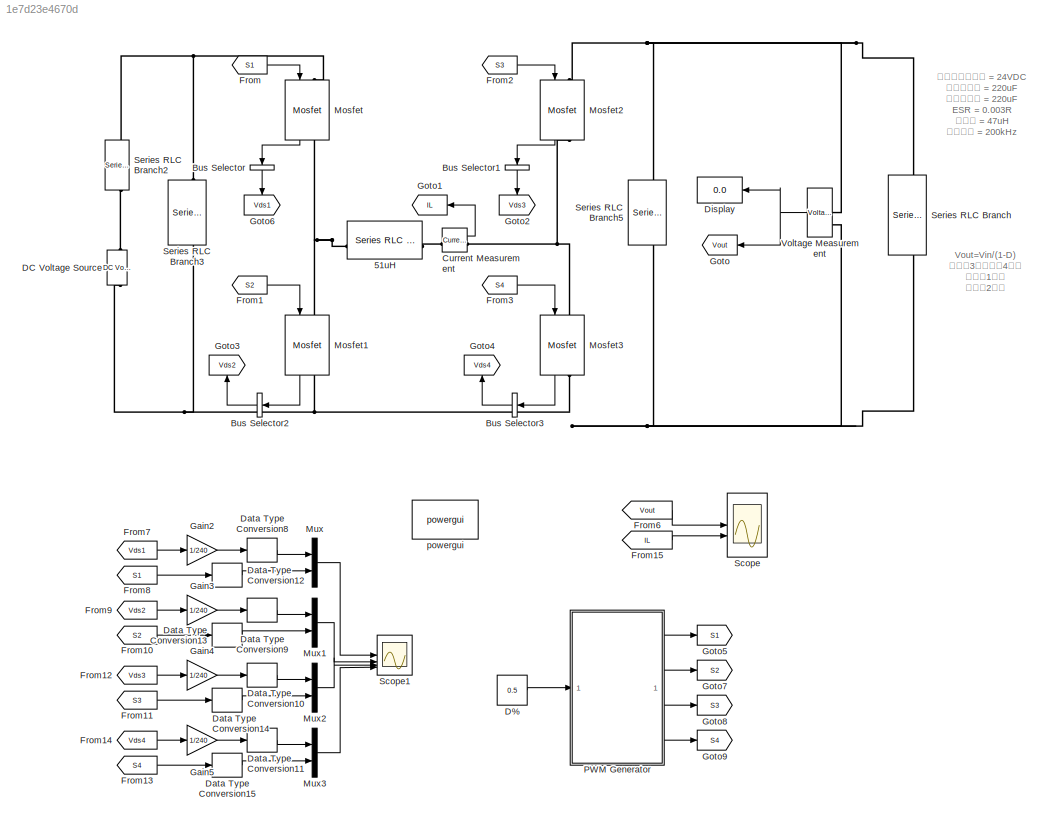
MODEL slx_1e7d23e4670d
KIND model
CONFIG AbsTol = auto
CONFIG EnableMultiTasking = off
CONFIG FixedStep = auto
CONFIG MaxStep = auto
CONFIG MinStep = auto
CONFIG RelTol = 1e-3
CONFIG SampleTimeConstraint = Unconstrained
CONFIG SolverName = VariableStepAuto
CONFIG StartTime = 0.0
CONFIG StopTime = 0.03
BLOCK [Reference] 51uH  REF=spsSeriesRLCBranchLib/Series RLC Branch
  LibrarySourceBlock = sps_lib/Passives/Series RLC Branch
  SourceBlock = spsSeriesRLCBranchLib/Series RLC Branch
  SourceType = Series RLC Branch
BLOCK [BusSelector] Bus Selector
  NameLocation = left
  OutputAsBus = on
  OutputSignals = MOSFET voltage
BLOCK [BusSelector] Bus Selector1
  NameLocation = left
  OutputAsBus = on
  OutputSignals = MOSFET voltage
BLOCK [BusSelector] Bus Selector2
  NameLocation = top
  OutputAsBus = on
  OutputSignals = MOSFET voltage
BLOCK [BusSelector] Bus Selector3
  NameLocation = top
  OutputAsBus = on
  OutputSignals = MOSFET voltage
BLOCK [Reference] Current Measurement  REF=spsCurrentMeasurementLib/Current Measurement
  LibrarySourceBlock = sps_lib/Sensors and Measurements/Current Measurement
  SourceBlock = spsCurrentMeasurementLib/Current Measurement
  SourceType = Current Measurement
  UserDataPersistent = on
BLOCK [Constant] D%
  Value = 0.5
BLOCK [Reference] DC Voltage Source  REF=spsDCVoltageSourceLib/DC Voltage Source
  LibrarySourceBlock = sps_lib/Sources/DC Voltage Source
  SourceBlock = spsDCVoltageSourceLib/DC Voltage Source
  SourceType = DC Voltage Source
BLOCK [DataTypeConversion] Data Type Conversion10
  RndMeth = Floor
  SaturateOnIntegerOverflow = off
BLOCK [DataTypeConversion] Data Type Conversion11
  RndMeth = Floor
  SaturateOnIntegerOverflow = off
BLOCK [DataTypeConversion] Data Type Conversion12
  RndMeth = Floor
  SaturateOnIntegerOverflow = off
BLOCK [DataTypeConversion] Data Type Conversion13
  RndMeth = Floor
  SaturateOnIntegerOverflow = off
BLOCK [DataTypeConversion] Data Type Conversion14
  RndMeth = Floor
  SaturateOnIntegerOverflow = off
BLOCK [DataTypeConversion] Data Type Conversion15
  RndMeth = Floor
  SaturateOnIntegerOverflow = off
BLOCK [DataTypeConversion] Data Type Conversion8
  RndMeth = Floor
  SaturateOnIntegerOverflow = off
BLOCK [DataTypeConversion] Data Type Conversion9
  RndMeth = Floor
  SaturateOnIntegerOverflow = off
BLOCK [Display] Display
  Decimation = 1
BLOCK [From] From
  GotoTag = S1
BLOCK [From] From1
  GotoTag = S2
BLOCK [From] From10
  GotoTag = S2
BLOCK [From] From11
  GotoTag = S3
BLOCK [From] From12
  GotoTag = Vds3
BLOCK [From] From13
  GotoTag = S4
BLOCK [From] From14
  GotoTag = Vds4
BLOCK [From] From15
  GotoTag = IL
BLOCK [From] From2
  GotoTag = S3
BLOCK [From] From3
  GotoTag = S4
BLOCK [From] From6
  GotoTag = Vout
BLOCK [From] From7
  GotoTag = Vds1
BLOCK [From] From8
  GotoTag = S1
BLOCK [From] From9
  GotoTag = Vds2
BLOCK [Gain] Gain2
  Gain = 1/240
BLOCK [Gain] Gain3
  Gain = 1/240
BLOCK [Gain] Gain4
  Gain = 1/240
BLOCK [Gain] Gain5
  Gain = 1/240
BLOCK [Goto] Goto
  GotoTag = Vout
BLOCK [Goto] Goto1
  GotoTag = IL
BLOCK [Goto] Goto2
  GotoTag = Vds3
  NameLocation = left
BLOCK [Goto] Goto3
  GotoTag = Vds2
  NameLocation = right
BLOCK [Goto] Goto4
  GotoTag = Vds4
  NameLocation = right
BLOCK [Goto] Goto5
  GotoTag = S1
BLOCK [Goto] Goto6
  GotoTag = Vds1
  NameLocation = left
BLOCK [Goto] Goto7
  GotoTag = S2
BLOCK [Goto] Goto8
  GotoTag = S3
BLOCK [Goto] Goto9
  GotoTag = S4
BLOCK [Reference] Mosfet  REF=spsMosfetLib/Mosfet
  LibrarySourceBlock = sps_lib/Power Electronics/Mosfet
  NameLocation = left
  SourceBlock = spsMosfetLib/Mosfet
  SourceType = Mosfet
BLOCK [Reference] Mosfet1  REF=spsMosfetLib/Mosfet
  LibrarySourceBlock = sps_lib/Power Electronics/Mosfet
  NameLocation = left
  SourceBlock = spsMosfetLib/Mosfet
  SourceType = Mosfet
BLOCK [Reference] Mosfet2  REF=spsMosfetLib/Mosfet
  LibrarySourceBlock = sps_lib/Power Electronics/Mosfet
  NameLocation = left
  SourceBlock = spsMosfetLib/Mosfet
  SourceType = Mosfet
BLOCK [Reference] Mosfet3  REF=spsMosfetLib/Mosfet
  LibrarySourceBlock = sps_lib/Power Electronics/Mosfet
  NameLocation = left
  SourceBlock = spsMosfetLib/Mosfet
  SourceType = Mosfet
BLOCK [Mux] Mux
  DisplayOption = bar
  Inputs = 2
BLOCK [Mux] Mux1
  DisplayOption = bar
  Inputs = 2
BLOCK [Mux] Mux2
  DisplayOption = bar
  Inputs = 2
BLOCK [Mux] Mux3
  DisplayOption = bar
  Inputs = 2
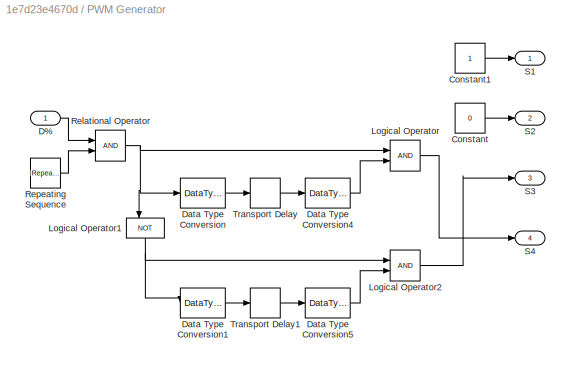
BLOCK [SubSystem] PWM Generator
BLOCK [Constant] PWM Generator/Constant
  Value = 0
BLOCK [Constant] PWM Generator/Constant1
BLOCK [Inport] PWM Generator/D%
BLOCK [DataTypeConversion] PWM Generator/Data Type Conversion
  RndMeth = Floor
  SaturateOnIntegerOverflow = off
BLOCK [DataTypeConversion] PWM Generator/Data Type Conversion1
  RndMeth = Floor
  SaturateOnIntegerOverflow = off
BLOCK [DataTypeConversion] PWM Generator/Data Type Conversion4
  RndMeth = Floor
  SaturateOnIntegerOverflow = off
BLOCK [DataTypeConversion] PWM Generator/Data Type Conversion5
  RndMeth = Floor
  SaturateOnIntegerOverflow = off
BLOCK [Logic] PWM Generator/Logical Operator
  AllPortsSameDT = off
  OutDataTypeStr = boolean
BLOCK [Logic] PWM Generator/Logical Operator1
  AllPortsSameDT = off
  NameLocation = left
  Operator = NOT
  OutDataTypeStr = boolean
BLOCK [Logic] PWM Generator/Logical Operator2
  AllPortsSameDT = off
  OutDataTypeStr = boolean
BLOCK [RelationalOperator] PWM Generator/Relational Operator
  InputSameDT = off
  OutDataTypeStr = boolean
BLOCK [Reference] PWM Generator/Repeating Sequence  REF=simulink/Sources/Repeating
Sequence
  SourceBlock = simulink/Sources/Repeating\nSequence
  SourceType = Repeating table
BLOCK [Outport] PWM Generator/S1
BLOCK [Outport] PWM Generator/S2
  Port = 2
BLOCK [Outport] PWM Generator/S3
  Port = 3
BLOCK [Outport] PWM Generator/S4
  Port = 4
BLOCK [TransportDelay] PWM Generator/Transport Delay
  DelayTime = 200e-9
BLOCK [TransportDelay] PWM Generator/Transport Delay1
  DelayTime = 200e-9
BLOCK [Scope] Scope
  Floating = off
  NumInputPorts = 2
  ScopeSpecificationString = Simulink.scopes.TimeScopeBlockCfg('CurrentConfiguration', extmgr.ConfigurationSet(extmgr.Configuration('Core','General UI',true,'FigureColor',[1 1 1]),extmgr.Configuration('Core','Source UI',true),extmgr.Configuration('Sources','WiredSimulink',true,'DataLoggingVariableName','ScopeData1'),extmgr.Configuration('Visuals','Time Domain',true,'SerializedDisplays',{struct('MinYLimReal','44.28661','MaxYLi...<+4218ch>
BLOCK [Scope] Scope1
  Floating = off
  NumInputPorts = 4
  ScopeSpecificationString = Simulink.scopes.TimeScopeBlockCfg('CurrentConfiguration', extmgr.ConfigurationSet(extmgr.Configuration('Core','General UI',true,'FigureColor',[1 1 1]),extmgr.Configuration('Core','Source UI',true),extmgr.Configuration('Sources','WiredSimulink',true),extmgr.Configuration('Visuals','Time Domain',true,'SerializedDisplays',{struct('MinYLimReal','-0.70594','MaxYLimReal','1.73874','YLabelReal','','MinYL...<+4796ch>
BLOCK [Reference] Series RLC Branch  REF=spsSeriesRLCBranchLib/Series RLC Branch
  LibrarySourceBlock = sps_lib/Passives/Series RLC Branch
  NameLocation = left
  SourceBlock = spsSeriesRLCBranchLib/Series RLC Branch
  SourceType = Series RLC Branch
BLOCK [Reference] Series RLC Branch2  REF=spsSeriesRLCBranchLib/Series RLC Branch
  LibrarySourceBlock = sps_lib/Passives/Series RLC Branch
  NameLocation = left
  SourceBlock = spsSeriesRLCBranchLib/Series RLC Branch
  SourceType = Series RLC Branch
BLOCK [Reference] Series RLC Branch3  REF=spsSeriesRLCBranchLib/Series RLC Branch
  LibrarySourceBlock = sps_lib/Passives/Series RLC Branch
  NameLocation = left
  SourceBlock = spsSeriesRLCBranchLib/Series RLC Branch
  SourceType = Series RLC Branch
BLOCK [Reference] Series RLC Branch5  REF=spsSeriesRLCBranchLib/Series RLC Branch
  LibrarySourceBlock = sps_lib/Passives/Series RLC Branch
  NameLocation = left
  SourceBlock = spsSeriesRLCBranchLib/Series RLC Branch
  SourceType = Series RLC Branch
BLOCK [Reference] Voltage Measurement  REF=spsVoltageMeasurementLib/Voltage Measurement
  LibrarySourceBlock = sps_lib/Sensors and Measurements/Voltage Measurement
  SourceBlock = spsVoltageMeasurementLib/Voltage Measurement
  SourceType = Voltage Measurement
  UserDataPersistent = on
BLOCK [Reference] powergui  REF=sps_lib/powergui
  LibrarySourceBlock = sps_lib/powergui
  Priority = 1
  SourceBlock = sps_lib/powergui
  SourceType = PSB option menu block
ANNOTATION (root): 输入电压标称值 = 24VDC 输入电容值 = 220uF 输出电容值 = 220uF ESR = 0.003R 电感值 = 47uH 开关频率 = 200kHz
ANNOTATION (root): Vout=Vin/(1-D) 开关管3与开关管4互补 开关管1常闭 开关管2常开
LINE Bus Selector1:1 -> Goto2:1
LINE Bus Selector2:1 -> Goto3:1
LINE Bus Selector3:1 -> Goto4:1
LINE Bus Selector:1 -> Goto6:1
LINE Current Measurement:1 -> Goto1:1
LINE D%:1 -> PWM Generator:1
LINE Data Type Conversion10:1 -> Mux2:1
LINE Data Type Conversion11:1 -> Mux3:1
LINE Data Type Conversion12:1 -> Mux:2
LINE Data Type Conversion13:1 -> Mux1:2
LINE Data Type Conversion14:1 -> Mux2:2
LINE Data Type Conversion15:1 -> Mux3:2
LINE Data Type Conversion8:1 -> Mux:1
LINE Data Type Conversion9:1 -> Mux1:1
LINE From10:1 -> Data Type Conversion13:1
LINE From11:1 -> Data Type Conversion14:1
LINE From12:1 -> Gain4:1
LINE From13:1 -> Data Type Conversion15:1
LINE From14:1 -> Gain5:1
LINE From15:1 -> Scope:2
LINE From1:1 -> Mosfet1:1
LINE From2:1 -> Mosfet2:1
LINE From3:1 -> Mosfet3:1
LINE From6:1 -> Scope:1
LINE From7:1 -> Gain2:1
LINE From8:1 -> Data Type Conversion12:1
LINE From9:1 -> Gain3:1
LINE From:1 -> Mosfet:1
LINE Gain2:1 -> Data Type Conversion8:1
LINE Gain3:1 -> Data Type Conversion9:1
LINE Gain4:1 -> Data Type Conversion10:1
LINE Gain5:1 -> Data Type Conversion11:1
LINE Mosfet1:1 -> Bus Selector2:1
LINE Mosfet2:1 -> Bus Selector1:1
LINE Mosfet3:1 -> Bus Selector3:1
LINE Mosfet:1 -> Bus Selector:1
LINE Mux1:1 -> Scope1:2
LINE Mux2:1 -> Scope1:3
LINE Mux3:1 -> Scope1:4
LINE Mux:1 -> Scope1:1
LINE PWM Generator/Constant1:1 -> PWM Generator/S1:1
LINE PWM Generator/Constant:1 -> PWM Generator/S2:1
LINE PWM Generator/D%:1 -> PWM Generator/Relational Operator:1
LINE PWM Generator/Data Type Conversion1:1 -> PWM Generator/Transport Delay1:1
LINE PWM Generator/Data Type Conversion4:1 -> PWM Generator/Logical Operator:2
LINE PWM Generator/Data Type Conversion5:1 -> PWM Generator/Logical Operator2:2
LINE PWM Generator/Data Type Conversion:1 -> PWM Generator/Transport Delay:1
NET PWM Generator/Logical Operator1:1 -> PWM Generator/Data Type Conversion1:1, PWM Generator/Logical Operator2:1
LINE PWM Generator/Logical Operator2:1 -> PWM Generator/S3:1
LINE PWM Generator/Logical Operator:1 -> PWM Generator/S4:1
NET PWM Generator/Relational Operator:1 -> PWM Generator/Data Type Conversion:1, PWM Generator/Logical Operator1:1, PWM Generator/Logical Operator:1
LINE PWM Generator/Repeating Sequence:1 -> PWM Generator/Relational Operator:2
LINE PWM Generator/Transport Delay1:1 -> PWM Generator/Data Type Conversion5:1
LINE PWM Generator/Transport Delay:1 -> PWM Generator/Data Type Conversion4:1
LINE PWM Generator:1 -> Goto5:1
LINE PWM Generator:2 -> Goto7:1
LINE PWM Generator:3 -> Goto8:1
LINE PWM Generator:4 -> Goto9:1
NET Voltage Measurement:1 -> Display:1, Goto:1
PNET net1: 51uH:LConn1 -- Mosfet1:LConn1 -- Mosfet:RConn1
PLINE 51uH:RConn1 -- Current Measurement:LConn1
PNET net2: Current Measurement:RConn1 -- Mosfet2:RConn1 -- Mosfet3:LConn1
PNET net3: DC Voltage Source:LConn1 -- Mosfet1:RConn1 -- Mosfet3:RConn1 -- Series RLC Branch3:RConn1 -- Series RLC Branch5:RConn1 -- Series RLC Branch:RConn1 -- Voltage Measurement:LConn2
PLINE DC Voltage Source:RConn1 -- Series RLC Branch2:RConn1
PNET net4: Mosfet2:LConn1 -- Series RLC Branch5:LConn1 -- Series RLC Branch:LConn1 -- Voltage Measurement:LConn1
PNET net5: Mosfet:LConn1 -- Series RLC Branch2:LConn1 -- Series RLC Branch3:LConn1
note: NET lines group one-source signal fan-out (src -> all destinations, sorted); 1:1 wires keep LINE; PNET lines group multi-terminal physical nets as a canonical sorted terminal list (undirected conserving connections); 2-terminal nets keep the pairwise PLINE form
